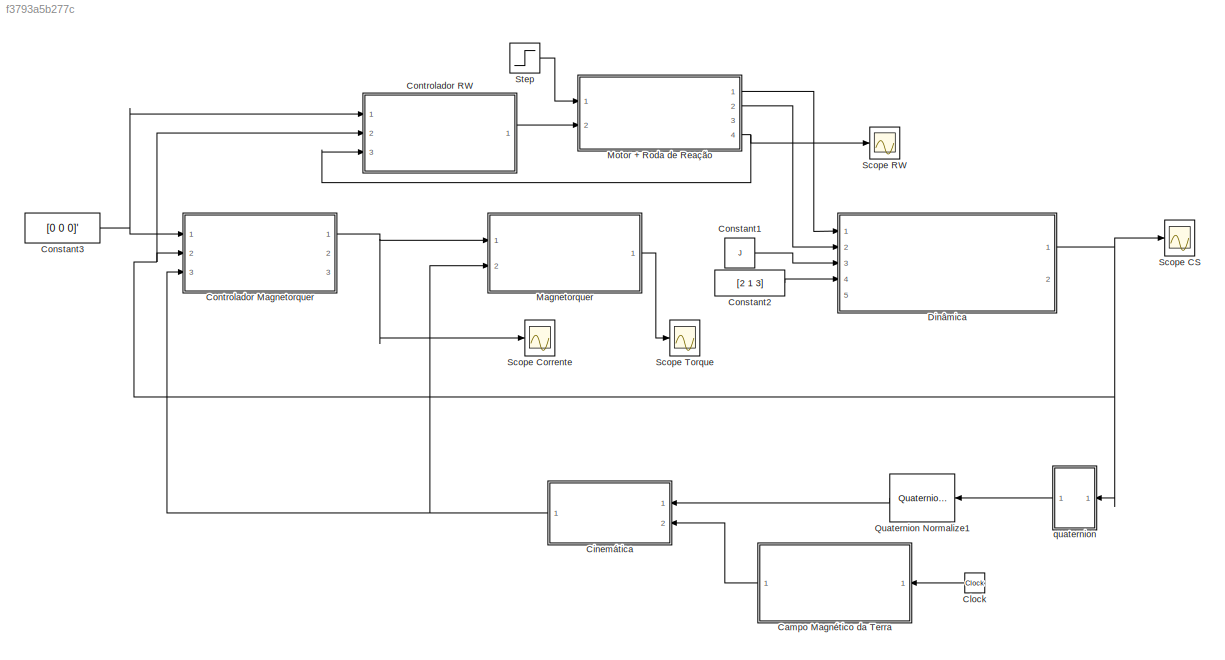
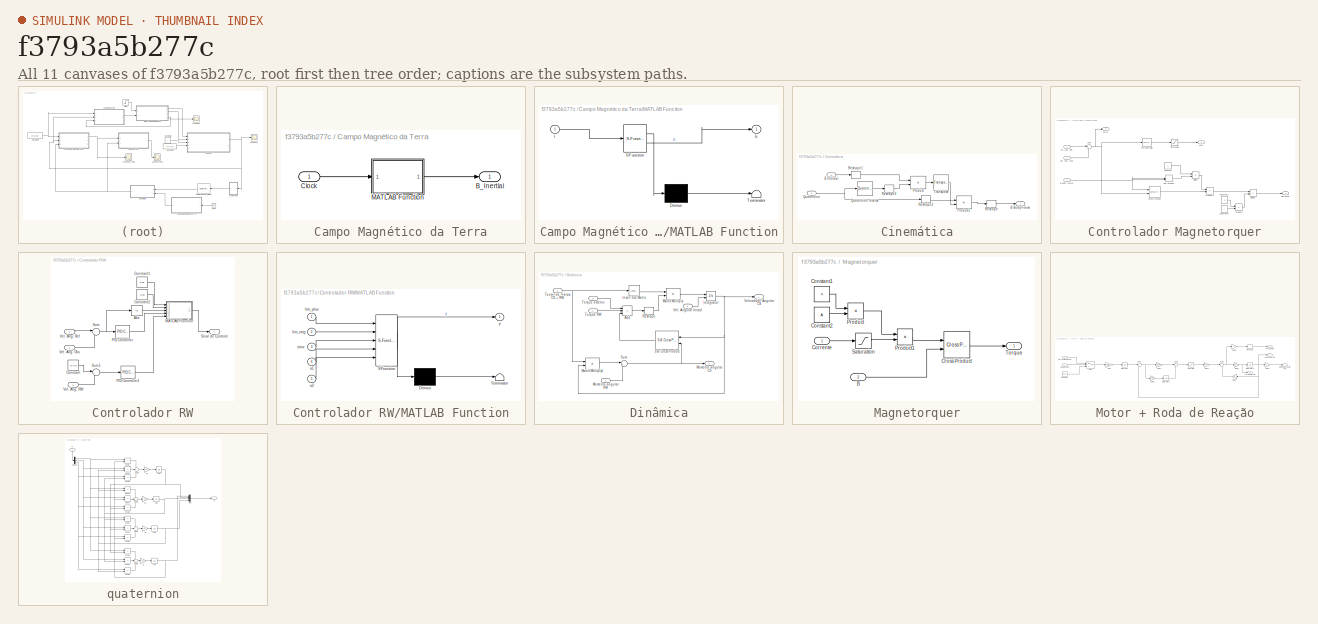
[diagram: thumbnail index - all 11 canvases of the model, root first then tree order]
MODEL slx_f3793a5b277c
KIND model
CONFIG AbsTol = auto
CONFIG EnableMultiTasking = off
CONFIG FixedStep = auto
CONFIG MaxStep = 0.4
CONFIG MinStep = auto
CONFIG RelTol = 1e-3
CONFIG SampleTimeConstraint = Unconstrained
CONFIG SolverName = ode45
CONFIG StartTime = 0.0
CONFIG StopTime = 3600
BLOCK [SubSystem] Campo Magnético da Terra
  Ports = [1, 1]
  RequestExecContextInheritance = off
BLOCK [Outport] Campo Magnético da Terra/B_Inertial
BLOCK [Inport] Campo Magnético da Terra/Clock
BLOCK [SubSystem] Campo Magnético da Terra/MATLAB Function
  ErrorFcn = Stateflow.Translate.translate
  PermitHierarchicalResolution = ExplicitOnly
  Ports = [1, 1]
  RequestExecContextInheritance = off
  SFBlockType = MATLAB Function
  TreatAsAtomicUnit = on
BLOCK [Demux] Campo Magnético da Terra/MATLAB Function/ Demux 
  Outputs = 1
  Ports = [1, 1]
BLOCK [S-Function] Campo Magnético da Terra/MATLAB Function/ SFunction 
  EnableBusSupport = on
  FunctionName = sf_sfun
  PortCounts = [1 2]
  Ports = [1, 2]
  SFcnIsStateOwnerBlock = off
  SFunctionDeploymentMode = off
  Tag = Stateflow S-Function 2
BLOCK [Terminator] Campo Magnético da Terra/MATLAB Function/ Terminator 
BLOCK [Outport] Campo Magnético da Terra/MATLAB Function/b
BLOCK [Inport] Campo Magnético da Terra/MATLAB Function/t
BLOCK [SubSystem] Cinemática
  Ports = [2, 1]
  RequestExecContextInheritance = off
BLOCK [Outport] Cinemática/B Body Frame
BLOCK [Inport] Cinemática/B Inercial
  Port = 2
BLOCK [Product] Cinemática/Product
  Multiplication = Matrix(*)
  Ports = [2, 1]
BLOCK [Product] Cinemática/Product1
  Multiplication = Matrix(*)
  Ports = [2, 1]
BLOCK [Inport] Cinemática/Quaternion
BLOCK [Reference] Cinemática/Quaternion Inverse  REF=aerolibutil/Quaternion
Inverse
  Ports = [1, 1]
  SourceBlock = aerolibutil/Quaternion\nInverse
  SourceProductBaseCode = AE
  SourceType = Quaternion Inverse
BLOCK [Reshape] Cinemática/Reshape
  OutputDimensionality = Column vector (2-D)
  Ports = [1, 1]
BLOCK [Reshape] Cinemática/Reshape1
  OutputDimensionality = Column vector (2-D)
  Ports = [1, 1]
BLOCK [Reshape] Cinemática/Reshape2
  OutputDimensionality = Row vector (2-D)
  Ports = [1, 1]
BLOCK [Reshape] Cinemática/Reshape3
  OutputDimensionality = Row vector (2-D)
  Ports = [1, 1]
BLOCK [Reference] Cinemática/Transpose  REF=matrix_library/Transpose
  Ports = [1, 1]
  SourceBlock = matrix_library/Transpose
  SourceProductBaseCode = SL
  SourceType = Transpose
BLOCK [Clock] Clock
BLOCK [Constant] Constant1
  Value = J
BLOCK [Constant] Constant2
  Value = [2 1 3]
BLOCK [Constant] Constant3
  Value = [0 0 0]'
BLOCK [SubSystem] Controlador Magnetorquer
  Ports = [3, 3]
  RequestExecContextInheritance = off
BLOCK [Inport] Controlador Magnetorquer/B body Frame
  Port = 3
BLOCK [Constant] Controlador Magnetorquer/Constant
BLOCK [Constant] Controlador Magnetorquer/Constant1
  Value = n
BLOCK [Constant] Controlador Magnetorquer/Constant2
  Value = A
BLOCK [Outport] Controlador Magnetorquer/Corrente
BLOCK [Reference] Controlador Magnetorquer/Cross Product  REF=matrix_library/Cross Product
  Ports = [2, 1]
  SourceBlock = matrix_library/Cross Product
  SourceProductBaseCode = SL
  SourceType = CrossProduct
BLOCK [Product] Controlador Magnetorquer/Divide
  Inputs = */
  Ports = [2, 1]
BLOCK [Product] Controlador Magnetorquer/Divide1
  Inputs = */
  Ports = [2, 1]
BLOCK [DotProduct] Controlador Magnetorquer/Dot Product
  OutDataTypeStr = Inherit: Inherit via internal rule
BLOCK [Outport] Controlador Magnetorquer/Error
  Port = 3
BLOCK [Outport] Controlador Magnetorquer/PID
  Port = 2
BLOCK [Reference] Controlador Magnetorquer/PID Controller  REF=slpidlib/PID Controller
  Ports = [1, 1]
  SourceBlock = slpidlib/PID Controller
  SourceProductBaseCode = SL
  SourceType = PID 1dof
BLOCK [Product] Controlador Magnetorquer/Product
  Ports = [2, 1]
BLOCK [Product] Controlador Magnetorquer/Product2
  Ports = [2, 1]
BLOCK [Saturate] Controlador Magnetorquer/Saturation
  LowerLimit = -1
  UpperLimit = 1
BLOCK [Sum] Controlador Magnetorquer/Sum
  Inputs = |+-
  Ports = [2, 1]
BLOCK [Inport] Controlador Magnetorquer/Vel. Ang. Obs.
  Port = 2
BLOCK [Inport] Controlador Magnetorquer/Vel. Ang. Ref.
BLOCK [SubSystem] Controlador RW
  Ports = [3, 1]
  RequestExecContextInheritance = off
BLOCK [Abs] Controlador RW/Abs
  SaturateOnIntegerOverflow = off
BLOCK [Constant] Controlador RW/Constant
  Value = [0 0 0]
BLOCK [Constant] Controlador RW/Constant1
  Value = 0.05
BLOCK [Constant] Controlador RW/Constant2
  Value = -0.05
BLOCK [SubSystem] Controlador RW/MATLAB Function
  ErrorFcn = Stateflow.Translate.translate
  PermitHierarchicalResolution = ExplicitOnly
  Ports = [5, 1]
  RequestExecContextInheritance = off
  SFBlockType = MATLAB Function
  TreatAsAtomicUnit = on
BLOCK [Demux] Controlador RW/MATLAB Function/ Demux 
  Outputs = 1
  Ports = [1, 1]
BLOCK [S-Function] Controlador RW/MATLAB Function/ SFunction 
  EnableBusSupport = on
  FunctionName = sf_sfun
  PortCounts = [5 2]
  Ports = [5, 2]
  SFcnIsStateOwnerBlock = off
  SFunctionDeploymentMode = off
  Tag = Stateflow S-Function 1
BLOCK [Terminator] Controlador RW/MATLAB Function/ Terminator 
BLOCK [Inport] Controlador RW/MATLAB Function/error
  Port = 3
BLOCK [Inport] Controlador RW/MATLAB Function/lim_neg
  Port = 2
BLOCK [Inport] Controlador RW/MATLAB Function/lim_plus
BLOCK [Inport] Controlador RW/MATLAB Function/u1
  Port = 4
BLOCK [Inport] Controlador RW/MATLAB Function/u2
  Port = 5
BLOCK [Outport] Controlador RW/MATLAB Function/y
BLOCK [Reference] Controlador RW/PID Controller  REF=slpidlib/PID Controller
  Ports = [1, 1]
  SourceBlock = slpidlib/PID Controller
  SourceProductBaseCode = SL
  SourceType = PID 1dof
BLOCK [Reference] Controlador RW/PID Controller1  REF=slpidlib/PID Controller
  Ports = [1, 1]
  SourceBlock = slpidlib/PID Controller
  SourceProductBaseCode = SL
  SourceType = PID 1dof
BLOCK [Outport] Controlador RW/Sinal de Controle
BLOCK [Sum] Controlador RW/Sum
  Inputs = |+-
  Ports = [2, 1]
BLOCK [Sum] Controlador RW/Sum1
  Inputs = |+-
  Ports = [2, 1]
BLOCK [Inport] Controlador RW/Vel. Ang. Obs
  Port = 2
BLOCK [Inport] Controlador RW/Vel. Ang. RW
  Port = 3
BLOCK [Inport] Controlador RW/Vel. Ang. Ref
BLOCK [SubSystem] Dinâmica
  Ports = [5, 2]
  RequestExecContextInheritance = off
BLOCK [Reference] Dinâmica/3x3 Cross Product  REF=sharedutil/3x3 Cross Product
  NameLocation = top
  Ports = [2, 1]
  SourceBlock = sharedutil/3x3 Cross Product
  SourceProductBaseCode = AE,PW,DR,MT,UV,VE
  SourceType = CrossProduct
BLOCK [Sum] Dinâmica/Add
  IconShape = rectangular
  Inputs = +--
  Ports = [3, 1]
BLOCK [Integrator] Dinâmica/Integrator
  InitialConditionSource = external
  Ports = [2, 1]
BLOCK [Reference] Dinâmica/Invert 3x3 Matrix  REF=aerolibutil/Invert 
3x3 Matrix
  Ports = [1, 1]
  SourceBlock = aerolibutil/Invert \n3x3 Matrix
  SourceProductBaseCode = AE
  SourceType = Invert 3x3 Matrix
BLOCK [Product] Dinâmica/Matrix Multiply
  Multiplication = Matrix(*)
  Ports = [2, 1]
BLOCK [Product] Dinâmica/Matrix Multiply1
  Multiplication = Matrix(*)
  Ports = [2, 1]
BLOCK [Outport] Dinâmica/Momento angular CS
  Port = 2
BLOCK [Inport] Dinâmica/Momento angular RW
  Port = 2
BLOCK [Reshape] Dinâmica/Reshape
  OutputDimensionality = Column vector (2-D)
  Ports = [1, 1]
BLOCK [Sum] Dinâmica/Sum
  Inputs = |++
  Ports = [2, 1]
BLOCK [Inport] Dinâmica/Tensor de Inércia CS + RW
  Port = 3
BLOCK [Inport] Dinâmica/Torque RW
BLOCK [Inport] Dinâmica/Torque externo
  Port = 5
BLOCK [Inport] Dinâmica/Vel. Angular Inicial
  Port = 4
BLOCK [Outport] Dinâmica/Velocidade Angular CS
BLOCK [SubSystem] Magnetorquer
  Ports = [2, 1]
  RequestExecContextInheritance = off
BLOCK [Inport] Magnetorquer/B
  Port = 2
BLOCK [Constant] Magnetorquer/Constant1
  Value = n
BLOCK [Constant] Magnetorquer/Constant2
  Value = A
BLOCK [Inport] Magnetorquer/Corrente
BLOCK [Reference] Magnetorquer/Cross Product  REF=matrix_library/Cross Product
  Ports = [2, 1]
  SourceBlock = matrix_library/Cross Product
  SourceProductBaseCode = SL
  SourceType = CrossProduct
BLOCK [Product] Magnetorquer/Product
  Ports = [2, 1]
BLOCK [Product] Magnetorquer/Product1
  Ports = [2, 1]
BLOCK [Saturate] Magnetorquer/Saturation
BLOCK [Outport] Magnetorquer/Torque
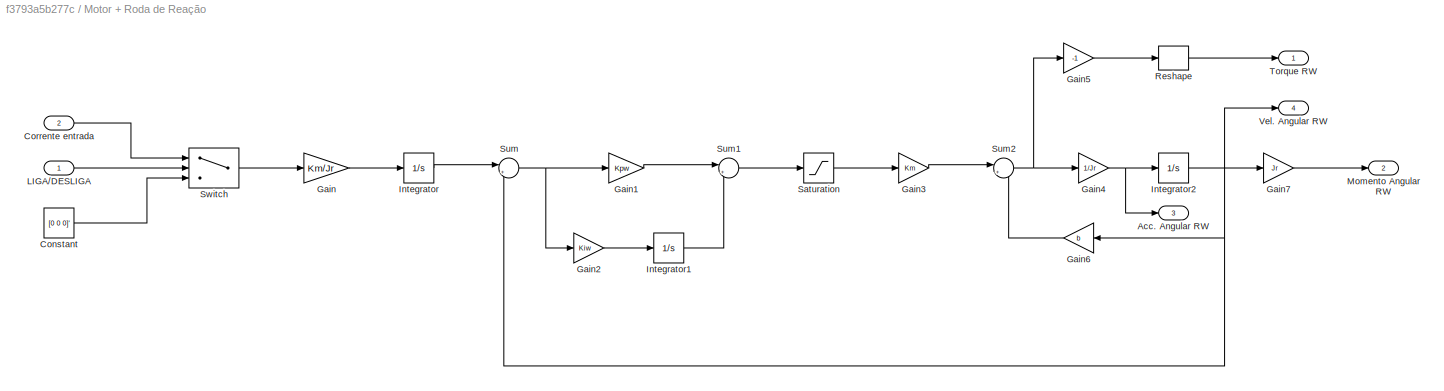
BLOCK [SubSystem] Motor + Roda de Reação
  Ports = [2, 4]
  RequestExecContextInheritance = off
BLOCK [Outport] Motor + Roda de Reação/Acc. Angular RW
  Port = 3
BLOCK [Constant] Motor + Roda de Reação/Constant
  Value = [0 0 0]'
BLOCK [Inport] Motor + Roda de Reação/Corrente entrada
  Port = 2
BLOCK [Gain] Motor + Roda de Reação/Gain
  Gain = Km/Jr
BLOCK [Gain] Motor + Roda de Reação/Gain1
  Gain = Kpw
BLOCK [Gain] Motor + Roda de Reação/Gain2
  Gain = Kiw
BLOCK [Gain] Motor + Roda de Reação/Gain3
  Gain = Km
BLOCK [Gain] Motor + Roda de Reação/Gain4
  Gain = 1/Jr
BLOCK [Gain] Motor + Roda de Reação/Gain5
  Gain = -1
BLOCK [Gain] Motor + Roda de Reação/Gain6
  Gain = b
  NameLocation = top
BLOCK [Gain] Motor + Roda de Reação/Gain7
  Gain = Jr
BLOCK [Integrator] Motor + Roda de Reação/Integrator
  Ports = [1, 1]
BLOCK [Integrator] Motor + Roda de Reação/Integrator1
  Ports = [1, 1]
BLOCK [Integrator] Motor + Roda de Reação/Integrator2
  Ports = [1, 1]
BLOCK [Inport] Motor + Roda de Reação/LIGA//DESLIGA
BLOCK [Outport] Motor + Roda de Reação/Momento Angular RW
  Port = 2
BLOCK [Reshape] Motor + Roda de Reação/Reshape
  OutputDimensionality = Column vector (2-D)
  Ports = [1, 1]
BLOCK [Saturate] Motor + Roda de Reação/Saturation
BLOCK [Sum] Motor + Roda de Reação/Sum
  Inputs = |+-
  Ports = [2, 1]
BLOCK [Sum] Motor + Roda de Reação/Sum1
  Inputs = |++
  Ports = [2, 1]
BLOCK [Sum] Motor + Roda de Reação/Sum2
  Inputs = |+-
  Ports = [2, 1]
BLOCK [Switch] Motor + Roda de Reação/Switch
  Criteria = u2 > Threshold
  InputSameDT = off
  SaturateOnIntegerOverflow = off
BLOCK [Outport] Motor + Roda de Reação/Torque RW
BLOCK [Outport] Motor + Roda de Reação/Vel. Angular RW
  Port = 4
BLOCK [Reference] Quaternion Normalize1  REF=sharedutil/Quaternion
Normalize
  NameLocation = top
  Ports = [1, 1]
  SourceBlock = sharedutil/Quaternion\nNormalize
  SourceProductBaseCode = AE,PW,DR,MT,UV,VE
  SourceType = Quaternion Normalize
BLOCK [Scope] Scope CS
  Floating = off
  NumInputPorts = 1
  Ports = [1]
  ScopeSpecificationString = Simulink.scopes.TimeScopeBlockCfg('CurrentConfiguration', extmgr.ConfigurationSet(extmgr.Configuration('Core','General UI',true),extmgr.Configuration('Core','Source UI',true),extmgr.Configuration('Sources','WiredSimulink',true),extmgr.Configuration('Visuals','Time Domain',true,'SerializedDisplays',{struct('MinYLimReal','-5.65485','MaxYLimReal','6.0186','YLabelReal','','MinYLimMag','0.00000','MaxYL...<+1653ch>
BLOCK [Scope] Scope Corrente
  Floating = off
  NumInputPorts = 1
  Ports = [1]
  ScopeSpecificationString = Simulink.scopes.TimeScopeBlockCfg('CurrentConfiguration', extmgr.ConfigurationSet(extmgr.Configuration('Core','General UI',true),extmgr.Configuration('Core','Source UI',true),extmgr.Configuration('Sources','WiredSimulink',true,'DataLoggingVariableName','ScopeData1'),extmgr.Configuration('Visuals','Time Domain',true,'SerializedDisplays',{struct('MinYLimReal','-3574663581.64644','MaxYLimReal','36327...<+1937ch>
BLOCK [Scope] Scope RW
  Floating = off
  NumInputPorts = 1
  Ports = [1]
  ScopeSpecificationString = Simulink.scopes.TimeScopeBlockCfg('CurrentConfiguration', extmgr.ConfigurationSet(extmgr.Configuration('Core','General UI',true),extmgr.Configuration('Core','Source UI',true),extmgr.Configuration('Sources','WiredSimulink',true,'DataLoggingVariableName','ScopeData1'),extmgr.Configuration('Visuals','Time Domain',true,'SerializedDisplays',{struct('MinYLimReal','-3397.96677','MaxYLimReal','3259.62837'...<+1635ch>
BLOCK [Scope] Scope Torque
  Floating = off
  NumInputPorts = 1
  Ports = [1]
  ScopeSpecificationString = Simulink.scopes.TimeScopeBlockCfg('CurrentConfiguration', extmgr.ConfigurationSet(extmgr.Configuration('Core','General UI',true),extmgr.Configuration('Core','Source UI',true),extmgr.Configuration('Sources','WiredSimulink',true,'DataLoggingVariableName','ScopeData1'),extmgr.Configuration('Visuals','Time Domain',true,'SerializedDisplays',{struct('MinYLimReal','-0.07724','MaxYLimReal','0.0561','YLabe...<+1860ch>
BLOCK [Step] Step
  Before = 1
  SampleTime = 0
  Time = 30
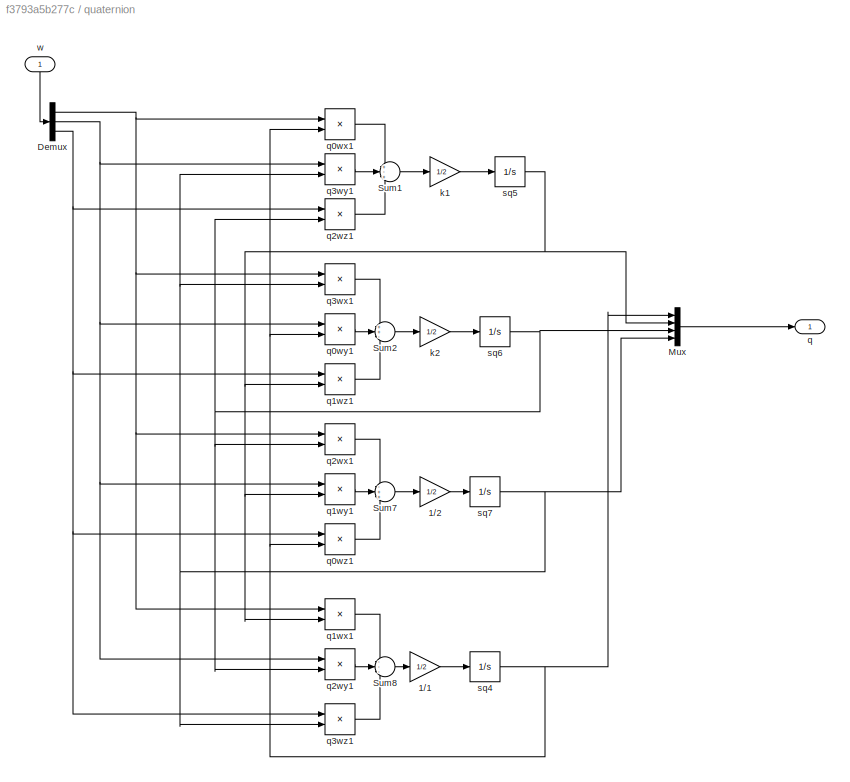
BLOCK [SubSystem] quaternion
  NameLocation = top
  Ports = [1, 1]
  RequestExecContextInheritance = off
BLOCK [Gain] quaternion/1//1
  Gain = 1/2
BLOCK [Gain] quaternion/1//2
  Gain = 1/2
BLOCK [Demux] quaternion/Demux
  Outputs = 3
  Ports = [1, 3]
BLOCK [Mux] quaternion/Mux
  DisplayOption = bar
  Ports = [4, 1]
BLOCK [Sum] quaternion/Sum1
  Inputs = +-+
  Ports = [3, 1]
BLOCK [Sum] quaternion/Sum2
  Inputs = ++-
  Ports = [3, 1]
BLOCK [Sum] quaternion/Sum7
  Inputs = -++
  Ports = [3, 1]
BLOCK [Sum] quaternion/Sum8
  Inputs = ---
  Ports = [3, 1]
BLOCK [Gain] quaternion/k1
  Gain = 1/2
BLOCK [Gain] quaternion/k2
  Gain = 1/2
BLOCK [Outport] quaternion/q
BLOCK [Product] quaternion/q0wx1
  Ports = [2, 1]
  RndMeth = Zero
BLOCK [Product] quaternion/q0wy1
  Ports = [2, 1]
  RndMeth = Zero
BLOCK [Product] quaternion/q0wz1
  Ports = [2, 1]
  RndMeth = Zero
BLOCK [Product] quaternion/q1wx1
  Ports = [2, 1]
  RndMeth = Zero
BLOCK [Product] quaternion/q1wy1
  Ports = [2, 1]
  RndMeth = Zero
BLOCK [Product] quaternion/q1wz1
  Ports = [2, 1]
  RndMeth = Zero
BLOCK [Product] quaternion/q2wx1
  Ports = [2, 1]
  RndMeth = Zero
BLOCK [Product] quaternion/q2wy1
  Ports = [2, 1]
  RndMeth = Zero
BLOCK [Product] quaternion/q2wz1
  Ports = [2, 1]
  RndMeth = Zero
BLOCK [Product] quaternion/q3wx1
  Ports = [2, 1]
  RndMeth = Zero
BLOCK [Product] quaternion/q3wy1
  Ports = [2, 1]
  RndMeth = Zero
BLOCK [Product] quaternion/q3wz1
  Ports = [2, 1]
  RndMeth = Zero
BLOCK [Integrator] quaternion/sq4
  InitialCondition = 1
  Ports = [1, 1]
BLOCK [Integrator] quaternion/sq5
  Ports = [1, 1]
BLOCK [Integrator] quaternion/sq6
  Ports = [1, 1]
BLOCK [Integrator] quaternion/sq7
  Ports = [1, 1]
BLOCK [Inport] quaternion/w
  NameLocation = right
LINE Campo Magnético da Terra/Clock:1 -> Campo Magnético da Terra/MATLAB Function:1
LINE Campo Magnético da Terra/MATLAB Function:1 -> Campo Magnético da Terra/B_Inertial:1
LINE Campo Magnético da Terra:1 -> Cinemática:2
LINE Cinemática/B Inercial:1 -> Cinemática/Reshape1:1
LINE Cinemática/Product1:1 -> Cinemática/Reshape:1
LINE Cinemática/Product:1 -> Cinemática/Transpose:1
LINE Cinemática/Quaternion Inverse:1 -> Cinemática/Reshape2:1
NET Cinemática/Quaternion:1 -> Cinemática/Quaternion Inverse:1, Cinemática/Reshape3:1
LINE Cinemática/Reshape1:1 -> Cinemática/Product:1
LINE Cinemática/Reshape2:1 -> Cinemática/Product:2
LINE Cinemática/Reshape3:1 -> Cinemática/Product1:1
LINE Cinemática/Reshape:1 -> Cinemática/B Body Frame:1
LINE Cinemática/Transpose:1 -> Cinemática/Product1:2
NET Cinemática:1 -> Controlador Magnetorquer:3, Magnetorquer:2
LINE Clock:1 -> Campo Magnético da Terra:1
LINE Constant1:1 -> Dinâmica:3
LINE Constant2:1 -> Dinâmica:4
NET Constant3:1 -> Controlador Magnetorquer:1, Controlador RW:1
NET Controlador Magnetorquer/B body Frame:1 -> Controlador Magnetorquer/Cross Product:1, Controlador Magnetorquer/Dot Product:1, Controlador Magnetorquer/Dot Product:2
LINE Controlador Magnetorquer/Constant1:1 -> Controlador Magnetorquer/Product:1
LINE Controlador Magnetorquer/Constant2:1 -> Controlador Magnetorquer/Product:2
LINE Controlador Magnetorquer/Constant:1 -> Controlador Magnetorquer/Divide:1
LINE Controlador Magnetorquer/Cross Product:1 -> Controlador Magnetorquer/Product2:2
LINE Controlador Magnetorquer/Divide1:1 -> Controlador Magnetorquer/Corrente:1
LINE Controlador Magnetorquer/Divide:1 -> Controlador Magnetorquer/Product2:1
LINE Controlador Magnetorquer/Dot Product:1 -> Controlador Magnetorquer/Divide:2
LINE Controlador Magnetorquer/PID Controller:1 -> Controlador Magnetorquer/Saturation:1
LINE Controlador Magnetorquer/Product2:1 -> Controlador Magnetorquer/Divide1:1
LINE Controlador Magnetorquer/Product:1 -> Controlador Magnetorquer/Divide1:2
LINE Controlador Magnetorquer/Saturation:1 -> Controlador Magnetorquer/PID:1
NET Controlador Magnetorquer/Sum:1 -> Controlador Magnetorquer/Cross Product:2, Controlador Magnetorquer/Error:1, Controlador Magnetorquer/PID Controller:1
LINE Controlador Magnetorquer/Vel. Ang. Obs.:1 -> Controlador Magnetorquer/Sum:2
LINE Controlador Magnetorquer/Vel. Ang. Ref.:1 -> Controlador Magnetorquer/Sum:1
NET Controlador Magnetorquer:1 -> Magnetorquer:1, Scope Corrente:1
LINE Controlador RW/Abs:1 -> Controlador RW/MATLAB Function:3
LINE Controlador RW/Constant1:1 -> Controlador RW/MATLAB Function:1
LINE Controlador RW/Constant2:1 -> Controlador RW/MATLAB Function:2
LINE Controlador RW/Constant:1 -> Controlador RW/Sum1:1
LINE Controlador RW/MATLAB Function:1 -> Controlador RW/Sinal de Controle:1
LINE Controlador RW/PID Controller1:1 -> Controlador RW/MATLAB Function:5
LINE Controlador RW/PID Controller:1 -> Controlador RW/MATLAB Function:4
LINE Controlador RW/Sum1:1 -> Controlador RW/PID Controller1:1
NET Controlador RW/Sum:1 -> Controlador RW/Abs:1, Controlador RW/PID Controller:1
LINE Controlador RW/Vel. Ang. Obs:1 -> Controlador RW/Sum:2
LINE Controlador RW/Vel. Ang. RW:1 -> Controlador RW/Sum1:2
LINE Controlador RW/Vel. Ang. Ref:1 -> Controlador RW/Sum:1
LINE Controlador RW:1 -> Motor + Roda de Reação:2
LINE Dinâmica/3x3 Cross Product:1 -> Dinâmica/Add:3
LINE Dinâmica/Add:1 -> Dinâmica/Reshape:1
NET Dinâmica/Integrator:1 -> Dinâmica/3x3 Cross Product:1, Dinâmica/Matrix Multiply1:2, Dinâmica/Velocidade Angular CS:1
LINE Dinâmica/Invert 3x3 Matrix:1 -> Dinâmica/Matrix Multiply:1
LINE Dinâmica/Matrix Multiply1:1 -> Dinâmica/Sum:1
LINE Dinâmica/Matrix Multiply:1 -> Dinâmica/Integrator:1
LINE Dinâmica/Momento angular RW:1 -> Dinâmica/Sum:2
LINE Dinâmica/Reshape:1 -> Dinâmica/Matrix Multiply:2
NET Dinâmica/Sum:1 -> Dinâmica/3x3 Cross Product:2, Dinâmica/Momento angular CS:1
NET Dinâmica/Tensor de Inércia CS + RW:1 -> Dinâmica/Invert 3x3 Matrix:1, Dinâmica/Matrix Multiply1:1
LINE Dinâmica/Torque RW:1 -> Dinâmica/Add:2
LINE Dinâmica/Torque externo:1 -> Dinâmica/Add:1
LINE Dinâmica/Vel. Angular Inicial:1 -> Dinâmica/Integrator:2
NET Dinâmica:1 -> Controlador Magnetorquer:2, Controlador RW:2, Scope CS:1, quaternion:1
LINE Magnetorquer/B:1 -> Magnetorquer/Cross Product:2
LINE Magnetorquer/Constant1:1 -> Magnetorquer/Product:1
LINE Magnetorquer/Constant2:1 -> Magnetorquer/Product:2
LINE Magnetorquer/Corrente:1 -> Magnetorquer/Saturation:1
LINE Magnetorquer/Cross Product:1 -> Magnetorquer/Torque:1
LINE Magnetorquer/Product1:1 -> Magnetorquer/Cross Product:1
LINE Magnetorquer/Product:1 -> Magnetorquer/Product1:1
LINE Magnetorquer/Saturation:1 -> Magnetorquer/Product1:2
LINE Magnetorquer:1 -> Scope Torque:1
LINE Motor + Roda de Reação/Constant:1 -> Motor + Roda de Reação/Switch:3
LINE Motor + Roda de Reação/Corrente entrada:1 -> Motor + Roda de Reação/Switch:1
LINE Motor + Roda de Reação/Gain1:1 -> Motor + Roda de Reação/Sum1:1
LINE Motor + Roda de Reação/Gain2:1 -> Motor + Roda de Reação/Integrator1:1
LINE Motor + Roda de Reação/Gain3:1 -> Motor + Roda de Reação/Sum2:1
NET Motor + Roda de Reação/Gain4:1 -> Motor + Roda de Reação/Acc. Angular RW:1, Motor + Roda de Reação/Integrator2:1
LINE Motor + Roda de Reação/Gain5:1 -> Motor + Roda de Reação/Reshape:1
LINE Motor + Roda de Reação/Gain6:1 -> Motor + Roda de Reação/Sum2:2
LINE Motor + Roda de Reação/Gain7:1 -> Motor + Roda de Reação/Momento Angular RW:1
LINE Motor + Roda de Reação/Gain:1 -> Motor + Roda de Reação/Integrator:1
LINE Motor + Roda de Reação/Integrator1:1 -> Motor + Roda de Reação/Sum1:2
NET Motor + Roda de Reação/Integrator2:1 -> Motor + Roda de Reação/Gain6:1, Motor + Roda de Reação/Gain7:1, Motor + Roda de Reação/Sum:2, Motor + Roda de Reação/Vel. Angular RW:1
LINE Motor + Roda de Reação/Integrator:1 -> Motor + Roda de Reação/Sum:1
LINE Motor + Roda de Reação/LIGA//DESLIGA:1 -> Motor + Roda de Reação/Switch:2
LINE Motor + Roda de Reação/Reshape:1 -> Motor + Roda de Reação/Torque RW:1
LINE Motor + Roda de Reação/Saturation:1 -> Motor + Roda de Reação/Gain3:1
LINE Motor + Roda de Reação/Sum1:1 -> Motor + Roda de Reação/Saturation:1
NET Motor + Roda de Reação/Sum2:1 -> Motor + Roda de Reação/Gain4:1, Motor + Roda de Reação/Gain5:1
NET Motor + Roda de Reação/Sum:1 -> Motor + Roda de Reação/Gain1:1, Motor + Roda de Reação/Gain2:1
LINE Motor + Roda de Reação/Switch:1 -> Motor + Roda de Reação/Gain:1
LINE Motor + Roda de Reação:1 -> Dinâmica:1
LINE Motor + Roda de Reação:2 -> Dinâmica:2
NET Motor + Roda de Reação:4 -> Controlador RW:3, Scope RW:1
LINE Quaternion Normalize1:1 -> Cinemática:1
LINE Step:1 -> Motor + Roda de Reação:1
LINE quaternion/1//1:1 -> quaternion/sq4:1
LINE quaternion/1//2:1 -> quaternion/sq7:1
NET quaternion/Demux:1 -> quaternion/q0wx1:1, quaternion/q1wx1:1, quaternion/q2wx1:1, quaternion/q3wx1:1
NET quaternion/Demux:2 -> quaternion/q0wy1:1, quaternion/q1wy1:1, quaternion/q2wy1:1, quaternion/q3wy1:1
NET quaternion/Demux:3 -> quaternion/q0wz1:1, quaternion/q1wz1:1, quaternion/q2wz1:1, quaternion/q3wz1:1
LINE quaternion/Mux:1 -> quaternion/q:1
LINE quaternion/Sum1:1 -> quaternion/k1:1
LINE quaternion/Sum2:1 -> quaternion/k2:1
LINE quaternion/Sum7:1 -> quaternion/1//2:1
LINE quaternion/Sum8:1 -> quaternion/1//1:1
LINE quaternion/k1:1 -> quaternion/sq5:1
LINE quaternion/k2:1 -> quaternion/sq6:1
LINE quaternion/q0wx1:1 -> quaternion/Sum1:1
LINE quaternion/q0wy1:1 -> quaternion/Sum2:2
LINE quaternion/q0wz1:1 -> quaternion/Sum7:3
LINE quaternion/q1wx1:1 -> quaternion/Sum8:1
LINE quaternion/q1wy1:1 -> quaternion/Sum7:2
LINE quaternion/q1wz1:1 -> quaternion/Sum2:3
LINE quaternion/q2wx1:1 -> quaternion/Sum7:1
LINE quaternion/q2wy1:1 -> quaternion/Sum8:2
LINE quaternion/q2wz1:1 -> quaternion/Sum1:3
LINE quaternion/q3wx1:1 -> quaternion/Sum2:1
LINE quaternion/q3wy1:1 -> quaternion/Sum1:2
LINE quaternion/q3wz1:1 -> quaternion/Sum8:3
NET quaternion/sq4:1 -> quaternion/Mux:1, quaternion/q0wx1:2, quaternion/q0wy1:2, quaternion/q0wz1:2
NET quaternion/sq5:1 -> quaternion/Mux:2, quaternion/q1wx1:2, quaternion/q1wy1:2, quaternion/q1wz1:2
NET quaternion/sq6:1 -> quaternion/Mux:3, quaternion/q2wx1:2, quaternion/q2wy1:2, quaternion/q2wz1:2
NET quaternion/sq7:1 -> quaternion/Mux:4, quaternion/q3wx1:2, quaternion/q3wy1:2, quaternion/q3wz1:2
LINE quaternion/w:1 -> quaternion/Demux:1
LINE quaternion:1 -> Quaternion Normalize1:1
note: NET lines group one-source signal fan-out (src -> all destinations, sorted); 1:1 wires keep LINE
CHART Controlador RW/MATLAB Function states=1 transitions=1
  STATE_LABEL 'eML_blk_kernel()'
  STATE_LABEL "SCRIPT:\nfunction y = fcn(lim_plus, lim_neg, error, u1, u2)\n    u = u1.';\n\n    for l = size(u1,1)\n        if (error(l) <= lim_plus && error(l) >= lim_neg)\n           u(l) = u2(l);\n        end\n    end\n    %disp(u)\ny = u.';\n"
CHART Campo Magnético da Terra/MATLAB Function states=1 transitions=1
  STATE_LABEL 'eML_blk_kernel()'
  STATE_LABEL 'SCRIPT:\nfunction b = fcn(t)    \n    b = (1/(2*(t+1)))*[t+2, sqrt(3*t*t + 4*t)*sin(t),sqrt(3*t*t+4*t)*cos(t)];\n\n'
CHART  states=0 transitions=0
CHART  states=0 transitions=0
